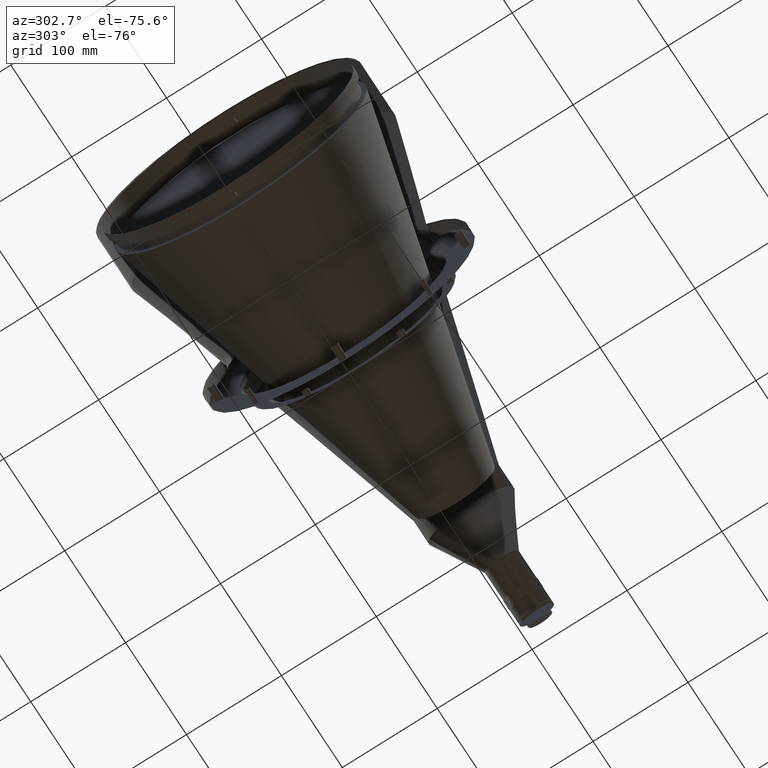
[diagram: clean part render]
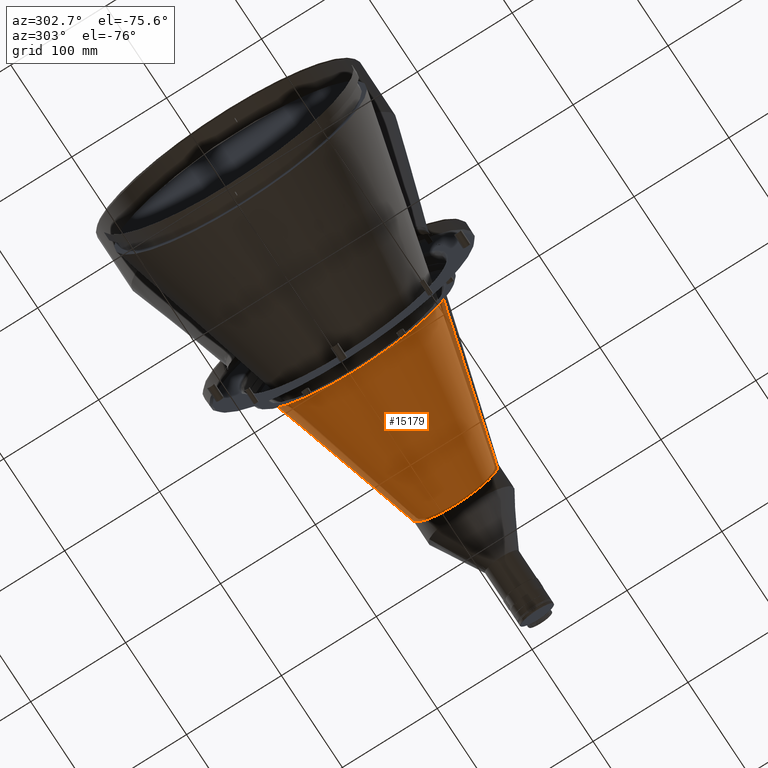
[diagram: same view with one face highlighted and labeled with its STEP entity id]
A machine part, auxiliary view. The second image highlights one B-rep face of the part: STEP entity #15179.
In plain terms, the highlighted conical surface has half-angle 16.106 deg.
Its self-contained STEP definition (entity closure, byte-faithful):
#52 = CARTESIAN_POINT ( 'NONE',  ( 212.1677403974469769, 90.12103095018520094, 20.27723196319460186 ) ) ;
#573 = CARTESIAN_POINT ( 'NONE',  ( 212.1677403973798448, 46.23231000037311844, -80.26903502938918678 ) ) ;
#831 = CARTESIAN_POINT ( 'NONE',  ( 212.1677403973978357, 62.90849465405844398, -67.99313033590257760 ) ) ;
#1462 = B_SPLINE_CURVE_WITH_KNOTS ( 'NONE', 3,
 ( #37001, #12056, #36474, #11790, #23841, #28406, #44500, #16602, #32446, #3475, #32709, #40206, #12846, #16342, #48823, #52844, #49084, #8039 ),
 .UNSPECIFIED., .F., .F.,
 ( 4, 2, 2, 2, 2, 2, 2, 2, 4 ),
 ( 0.06581045388277791119, 0.1159709937799003332, 0.1661315336770227691, 0.2162920735741452050, 0.2664526134712675853, 0.3166131533683898547, 0.3667736932655122351, 0.4169342331626345044, 0.4670947730597567737 ),
 .UNSPECIFIED. ) ;
#2858 = CARTESIAN_POINT ( 'NONE',  ( 374.5000000252650239, -39.43166609617012597, -22.87042919446923506 ) ) ;
#3475 = CARTESIAN_POINT ( 'NONE',  ( 212.1677403974003084, -53.64974684653530801, -75.37671482641336240 ) ) ;
#4070 = CARTESIAN_POINT ( 'NONE',  ( 212.1677403973718583, 33.79849072399659349, -86.24503752275950319 ) ) ;
#6114 = CARTESIAN_POINT ( 'NONE',  ( 212.1677403975307357, -90.12103094987450902, -20.27723196385271720 ) ) ;
#6155 = EDGE_CURVE ( 'NONE', #19271, #17024, #46614, .T. ) ;
#7151 = CARTESIAN_POINT ( 'NONE',  ( 374.5000000252650807, -40.75233114715719296, -20.42450314527935262 ) ) ;
#7301 = ORIENTED_EDGE ( 'NONE', *, *, #44173, .F. ) ;
#7419 = CARTESIAN_POINT ( 'NONE',  ( 374.5000000252873633, -44.39024389892430378, -9.987804877043572560 ) ) ;
#7876 = EDGE_CURVE ( 'NONE', #18827, #36586, #31117, .T. ) ;
#8039 = CARTESIAN_POINT ( 'NONE',  ( 212.1677403976075027, 2.225999828134021568E-11, -92.37405672396519662 ) ) ;
#10908 = CARTESIAN_POINT ( 'NONE',  ( 374.5000000252651375, 15.79923934529286988, -42.75858812880937165 ) ) ;
#11174 = CARTESIAN_POINT ( 'NONE',  ( 374.5000000252650239, 25.64253252421170970, -37.68784085621965119 ) ) ;
#11308 = ORIENTED_EDGE ( 'NONE', *, *, #48812, .F. ) ;
#11790 = CARTESIAN_POINT ( 'NONE',  ( 212.1677403974583456, -83.46289850955928102, -39.92354001194181023 ) ) ;
#11812 = AXIS2_PLACEMENT_3D ( 'NONE', #20575, #45505, #49568 ) ;
#12056 = CARTESIAN_POINT ( 'NONE',  ( 212.1677403974808556, -88.98087439982180058, -25.34459440863599866 ) ) ;
#12640 = CARTESIAN_POINT ( 'NONE',  ( 212.1677403974511549, 86.15348763495404683, -34.03117748232216400 ) ) ;
#12846 = CARTESIAN_POINT ( 'NONE',  ( 212.1677403973822607, -35.47770335808294817, -85.44751043278580482 ) ) ;
#12902 = CARTESIAN_POINT ( 'NONE',  ( 212.1677403974961749, 92.35510054316827677, -7.147018689508375822 ) ) ;
#13750 = ORIENTED_EDGE ( 'NONE', *, *, #18753, .T. ) ;
#14133 = CARTESIAN_POINT ( 'NONE',  ( 374.5000000252650239, 45.49999999999861444, -2.768180387744067605 ) ) ;
#14922 = CARTESIAN_POINT ( 'NONE',  ( 374.5000000252650807, 7.775883898323022514, -44.91601554299779764 ) ) ;
#15179 = ADVANCED_FACE ( 'NONE', ( #45248 ), #15211, .F. ) ;
#15190 = CARTESIAN_POINT ( 'NONE',  ( 374.5000000252650807, 30.02228563823184970, -34.30124178095314846 ) ) ;
#15211 = CONICAL_SURFACE ( 'NONE', #11812, 88.06164350011027864, 0.2811075136362181093 ) ;
#15348 = CARTESIAN_POINT ( 'NONE',  ( 212.1677403973656624, 6.897689243500247258, -92.37405672386739752 ) ) ;
#15463 = CARTESIAN_POINT ( 'NONE',  ( 374.5000000252650807, 18.37604851880903212, -41.71610796195375315 ) ) ;
#15729 = CARTESIAN_POINT ( 'NONE',  ( 374.5000000252649670, -42.92781546004440685, -15.33347587755168462 ) ) ;
#16156 = CARTESIAN_POINT ( 'NONE',  ( 374.5000000253829739, 44.39024389797705084, 9.987804877029670791 ) ) ;
#16342 = CARTESIAN_POINT ( 'NONE',  ( 212.1677403973755247, -25.67520461008164645, -88.88604132796996282 ) ) ;
#16602 = CARTESIAN_POINT ( 'NONE',  ( 212.1677403974174752, -65.54298576225805562, -65.29978171543187671 ) ) ;
#17024 = VERTEX_POINT ( 'NONE', #43548 ) ;
#17534 = B_SPLINE_CURVE_WITH_KNOTS ( 'NONE', 3,
 ( #50761, #30625, #17751, #34650 ),
 .UNSPECIFIED., .F., .F.,
 ( 4, 4 ),
 ( 0.000000000000000000, 1.000000000000000000 ),
 .UNSPECIFIED. ) ;
#17751 = CARTESIAN_POINT ( 'NONE',  ( 374.5000000252650239, 45.49999999999860734, 3.356602375603151334 ) ) ;
#18630 = EDGE_LOOP ( 'NONE', ( #11308, #13750, #25196, #7301, #43934, #28261 ) ) ;
#18753 = EDGE_CURVE ( 'NONE', #36822, #36586, #26418, .T. ) ;
#18827 = VERTEX_POINT ( 'NONE', #50074 ) ;
#19133 = VECTOR ( 'NONE', #32183, 1000.000000000000000 ) ;
#19271 = VERTEX_POINT ( 'NONE', #21415 ) ;
#19570 = LINE ( 'NONE', #27074, #19133 ) ;
#19750 = CARTESIAN_POINT ( 'NONE',  ( 374.5000000252649670, 43.49025625840001652, -13.65688226637639247 ) ) ;
#20012 = CARTESIAN_POINT ( 'NONE',  ( 374.5000000252650807, 23.29774055065950478, -39.18071091612750934 ) ) ;
#20575 = CARTESIAN_POINT ( 'NONE',  ( 227.1023082985759913, 2.097166884595940093E-10, -2.741806781614290211E-10 ) ) ;
#20689 = CARTESIAN_POINT ( 'NONE',  ( 212.1677403974620120, 88.45980954063128365, -27.48466060426601842 ) ) ;
#21415 = CARTESIAN_POINT ( 'NONE',  ( 374.5000000253059511, 45.49999999770970049, -2.827987482876979595E-14 ) ) ;
#23841 = CARTESIAN_POINT ( 'NONE',  ( 212.1677403974510980, -81.08206857609160068, -44.56055015511309136 ) ) ;
#25196 = ORIENTED_EDGE ( 'NONE', *, *, #7876, .F. ) ;
#26418 = LINE ( 'NONE', #50599, #43540 ) ;
#27074 = CARTESIAN_POINT ( 'NONE',  ( 227.1023082986363590, -85.91379853653080545, -19.33060467081864431 ) ) ;
#27144 = CARTESIAN_POINT ( 'NONE',  ( 212.1677403973660034, 13.79508967588731139, -91.59825311302768114 ) ) ;
#27261 = CARTESIAN_POINT ( 'NONE',  ( 374.5000000252651375, -43.78259454909007786, -12.68846867076862495 ) ) ;
#27525 = CARTESIAN_POINT ( 'NONE',  ( 374.5000000252650239, -36.36826624944680475, -27.48203108702895747 ) ) ;
#27791 = CARTESIAN_POINT ( 'NONE',  ( 374.5000000252649670, 10.49910809849812843, -44.35855669197393780 ) ) ;
#28261 = ORIENTED_EDGE ( 'NONE', *, *, #6155, .F. ) ;
#28406 = CARTESIAN_POINT ( 'NONE',  ( 212.1677403974370293, -75.57563627026232211, -53.36916410300689506 ) ) ;
#28468 = CARTESIAN_POINT ( 'NONE',  ( 212.1677403974051686, 67.82306738713702998, -63.09180614558805900 ) ) ;
#30625 = CARTESIAN_POINT ( 'NONE',  ( 374.5000000252650239, 45.12705905806005546, 6.713070853055110199 ) ) ;
#31117 = B_SPLINE_CURVE_WITH_KNOTS ( 'NONE', 3,
 ( #44568, #15348, #27144, #37325, #4070, #573, #45357, #831, #28468, #49677, #36536, #12640, #20689, #36803, #12902, #33567, #32514, #52 ),
 .UNSPECIFIED., .F., .F.,
 ( 4, 2, 2, 2, 2, 2, 2, 2, 4 ),
 ( 0.4670947730597567737, 0.5337079264272871493, 0.6003210797948175248, 0.6669342331623479003, 0.7335473865298782759, 0.8001605398974086514, 0.8667736932649390269, 0.9333868466324695135, 1.000000000000000000 ),
 .UNSPECIFIED. ) ;
#31295 = CARTESIAN_POINT ( 'NONE',  ( 374.5000000252650239, -21.76049389044615978, -40.05488395068589824 ) ) ;
#31571 = CARTESIAN_POINT ( 'NONE',  ( 374.5000000252649670, -6.027860503926663505, -45.18382144533858025 ) ) ;
#32183 = DIRECTION ( 'NONE',  ( -0.9607487813151888156, -0.2706535227929673382, -0.06089704263046170907 ) ) ;
#32360 = CARTESIAN_POINT ( 'NONE',  ( 374.5000000252650807, 35.74948372602317903, -28.28227777216295991 ) ) ;
#32446 = CARTESIAN_POINT ( 'NONE',  ( 212.1677403974114213, -61.76148466903572398, -68.88732456840590146 ) ) ;
#32514 = CARTESIAN_POINT ( 'NONE',  ( 212.1677403975321852, 91.63515785705716610, 13.54777904267679922 ) ) ;
#32709 = CARTESIAN_POINT ( 'NONE',  ( 212.1677403973952778, -49.31961943292952810, -78.27847477890898631 ) ) ;
#33567 = CARTESIAN_POINT ( 'NONE',  ( 212.1677403975200775, 92.39233979502914451, 6.648309535527235248 ) ) ;
#34650 = CARTESIAN_POINT ( 'NONE',  ( 374.5000000253059511, 45.49999999770970049, -2.827987482876979595E-14 ) ) ;
#36122 = CARTESIAN_POINT ( 'NONE',  ( 374.5000000252649670, 40.28907602098760776, -21.32377021152810670 ) ) ;
#36383 = CARTESIAN_POINT ( 'NONE',  ( 374.5000000252649670, -34.62558802296070581, -29.64762177179268576 ) ) ;
#36474 = CARTESIAN_POINT ( 'NONE',  ( 212.1677403974732101, -87.41232803314144917, -30.31549739859082493 ) ) ;
#36536 = CARTESIAN_POINT ( 'NONE',  ( 212.1677403974311744, 80.14394305626164794, -46.44881983322995467 ) ) ;
#36586 = VERTEX_POINT ( 'NONE', #38694 ) ;
#36803 = CARTESIAN_POINT ( 'NONE',  ( 212.1677403974844083, 91.56068091256904040, -14.04229978731709316 ) ) ;
#36822 = VERTEX_POINT ( 'NONE', #16156 ) ;
#37001 = CARTESIAN_POINT ( 'NONE',  ( 212.1677403975307357, -90.12103094987450902, -20.27723196385271720 ) ) ;
#37325 = CARTESIAN_POINT ( 'NONE',  ( 212.1677403973690446, 27.24577201089143585, -88.53367935454639337 ) ) ;
#38694 = CARTESIAN_POINT ( 'NONE',  ( 212.1677403974469769, 90.12103095018520094, 20.27723196319460186 ) ) ;
#39117 = VERTEX_POINT ( 'NONE', #6114 ) ;
#40120 = CARTESIAN_POINT ( 'NONE',  ( 374.5000000252650807, -24.16142581311077109, -38.65408549347153411 ) ) ;
#40206 = CARTESIAN_POINT ( 'NONE',  ( 212.1677403973862113, -40.23353646561591290, -83.31390651142184822 ) ) ;
#40385 = CARTESIAN_POINT ( 'NONE',  ( 374.5000000252649670, -14.12885911681579110, -43.33922199020442889 ) ) ;
#42783 = DIRECTION ( 'NONE',  ( -0.9607487813155691780, 0.2706535227928572040, 0.06089704262494913950 ) ) ;
#43540 = VECTOR ( 'NONE', #42783, 1000.000000000000000 ) ;
#43548 = CARTESIAN_POINT ( 'NONE',  ( 374.5000000252873633, -44.39024389892430378, -9.987804877043572560 ) ) ;
#43623 = CARTESIAN_POINT ( 'NONE',  ( 374.5000000252649670, 37.40685310442097489, -26.05072289751757353 ) ) ;
#43885 = CARTESIAN_POINT ( 'NONE',  ( 374.5000000252648533, 44.24179937052871736, -10.98071086573403221 ) ) ;
#43934 = ORIENTED_EDGE ( 'NONE', *, *, #45115, .F. ) ;
#44148 = CARTESIAN_POINT ( 'NONE',  ( 374.5000000252650807, -8.770657783006207353, -44.73240866209233957 ) ) ;
#44173 = EDGE_CURVE ( 'NONE', #39117, #18827, #1462, .T. ) ;
#44418 = CARTESIAN_POINT ( 'NONE',  ( 374.5000000252650807, -0.5057881395316390361, -45.58132294061834244 ) ) ;
#44500 = CARTESIAN_POINT ( 'NONE',  ( 212.1677403974302365, -72.45010810386784783, -57.54064920079195389 ) ) ;
#44568 = CARTESIAN_POINT ( 'NONE',  ( 212.1677403976075027, 2.225999828134021568E-11, -92.37405672396519662 ) ) ;
#45115 = EDGE_CURVE ( 'NONE', #17024, #39117, #19570, .T. ) ;
#45248 = FACE_OUTER_BOUND ( 'NONE', #18630, .T. ) ;
#45357 = CARTESIAN_POINT ( 'NONE',  ( 212.1677403973850460, 52.11288995090265530, -76.58192458722555784 ) ) ;
#45505 = DIRECTION ( 'NONE',  ( -1.000000000000000000, -5.729233390151880410E-14, -2.868909492534290120E-12 ) ) ;
#46614 = B_SPLINE_CURVE_WITH_KNOTS ( 'NONE', 3,
 ( #50900, #14133, #52233, #43885, #19750, #47661, #36122, #43623, #32360, #52497, #15190, #11174, #20012, #15463, #10908, #27791, #14922, #51958, #44418, #31571, #44148, #40385, #51693, #31295, #40120, #47940, #52760, #36383, #27525, #2858, #7151, #15729, #27261, #7419 ),
 .UNSPECIFIED., .F., .F.,
 ( 4, 2, 2, 2, 2, 2, 2, 2, 2, 2, 2, 2, 2, 2, 2, 2, 4 ),
 ( 0.000000000000000000, 0.05809708906543169932, 0.1161941781308633986, 0.1742912671962950910, 0.2323883562617267973, 0.2904854453271585313, 0.3485825343925901820, 0.4066796234580218883, 0.4647767125234535945, 0.5228738015888853008, 0.5809708906543170626, 0.6390679797197488243, 0.6971650687851805861, 0.7552621578506124589, 0.8133592469160441096, 0.8714563359814757604, 0.9295534250469076332 ),
 .UNSPECIFIED. ) ;
#47661 = CARTESIAN_POINT ( 'NONE',  ( 374.5000000252649670, 41.51387633554957546, -18.82845968887705013 ) ) ;
#47940 = CARTESIAN_POINT ( 'NONE',  ( 374.5000000252650807, -28.66924022190705301, -35.43991376622769707 ) ) ;
#48812 = EDGE_CURVE ( 'NONE', #36822, #19271, #17534, .T. ) ;
#48823 = CARTESIAN_POINT ( 'NONE',  ( 212.1677403973727678, -20.62867107037443759, -90.19092196334526079 ) ) ;
#49084 = CARTESIAN_POINT ( 'NONE',  ( 212.1677403973672256, -5.194046505875149045, -92.37405672386782385 ) ) ;
#49568 = DIRECTION ( 'NONE',  ( 6.855240779592909671E-13, -0.9756097560981011885, -0.2195121951195500576 ) ) ;
#49677 = CARTESIAN_POINT ( 'NONE',  ( 212.1677403974218805, 76.44097200709677509, -52.31942537067904198 ) ) ;
#50074 = CARTESIAN_POINT ( 'NONE',  ( 212.1677403976075027, 2.225999828134021568E-11, -92.37405672396519662 ) ) ;
#50599 = CARTESIAN_POINT ( 'NONE',  ( 227.1023082985156236, 85.91379853695025304, 19.33060467027029361 ) ) ;
#50761 = CARTESIAN_POINT ( 'NONE',  ( 374.5000000253829739, 44.39024389797705084, 9.987804877029670791 ) ) ;
#50900 = CARTESIAN_POINT ( 'NONE',  ( 374.5000000253059511, 45.49999999770970049, -2.827987482876979595E-14 ) ) ;
#51693 = CARTESIAN_POINT ( 'NONE',  ( 374.5000000252650807, -16.74416422611048461, -42.39747382837914813 ) ) ;
#51958 = CARTESIAN_POINT ( 'NONE',  ( 374.5000000252649670, 2.273384974278816806, -45.52740431232324170 ) ) ;
#52233 = CARTESIAN_POINT ( 'NONE',  ( 374.5000000252650807, 45.24668051947910641, -5.536309657809594498 ) ) ;
#52497 = CARTESIAN_POINT ( 'NONE',  ( 374.5000000252649670, 32.05716590145163991, -32.40757530309528534 ) ) ;
#52760 = CARTESIAN_POINT ( 'NONE',  ( 374.5000000252650807, -30.77603946598946294, -33.62659984962693471 ) ) ;
#52844 = CARTESIAN_POINT ( 'NONE',  ( 212.1677403973686467, -10.38802301558945018, -91.93494141270079467 ) ) ;